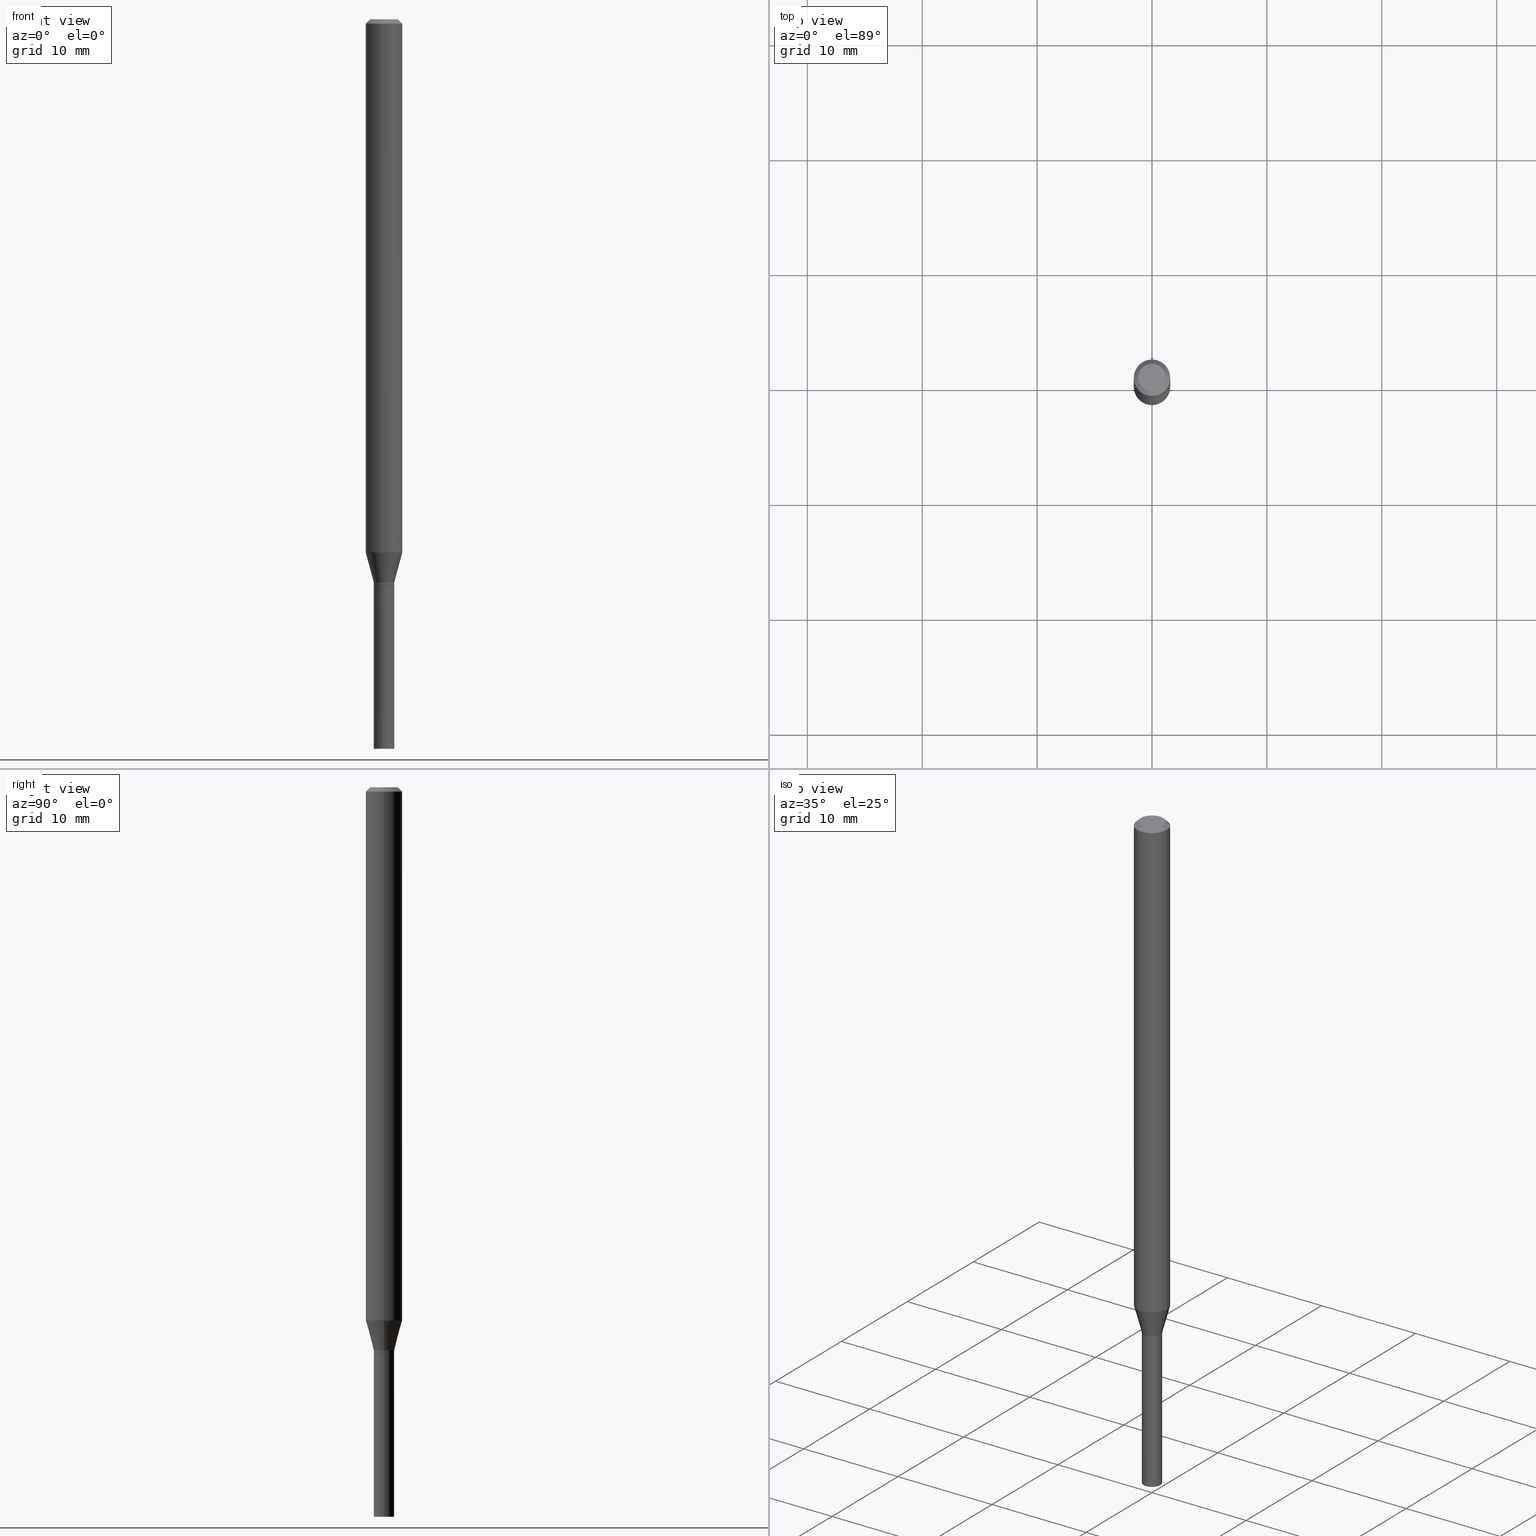
[diagram: canonical four-view strip — front | top / right | iso, engineering-drawing reading convention]
A machine part, canonical four-view strip (front | top / right | iso — engineering-drawing reading convention). The complete STEP part file that produces these views, byte-faithful:
ISO-10303-21;
HEADER;
FILE_DESCRIPTION (( 'STEP AP203' ),
    '1' );
FILE_NAME ('00626.STEP',
    '2024-03-19T22:08:39',
    ( '' ),
    ( '' ),
    'SwSTEP 2.0',
    'SolidWorks 2023',
    '' );
FILE_SCHEMA (( 'CONFIG_CONTROL_DESIGN' ));
ENDSEC;

DATA;
#1 = LINE ( 'NONE', #390, #259 ) ;
#2 = ORIENTED_EDGE ( 'NONE', *, *, #77, .F. ) ;
#3 = FACE_OUTER_BOUND ( 'NONE', #106, .T. ) ;
#4 = ADVANCED_FACE ( 'NONE', ( #133 ), #28, .T. ) ;
#5 = VECTOR ( 'NONE', #422, 39.37007874015748143 ) ;
#6 = DIRECTION ( 'NONE',  ( 1.000000000000000000, -6.982962677686264344E-15, 0.000000000000000000 ) ) ;
#7 = VERTEX_POINT ( 'NONE', #62 ) ;
#8 = DIRECTION ( 'NONE',  ( 0.7071067811865520136, -7.319954787623270245E-15, -0.7071067811865430208 ) ) ;
#9 = VERTEX_POINT ( 'NONE', #166 ) ;
#10 = DIRECTION ( 'NONE',  ( 1.000000000000000000, -6.982962677686266711E-15, 4.876176775795935793E-29 ) ) ;
#11 = VECTOR ( 'NONE', #318, 39.37007874015748143 ) ;
#12 = APPLICATION_CONTEXT ( 'configuration controlled 3d designs of mechanical parts and assemblies' ) ;
#13 = DIRECTION ( 'NONE',  ( 1.000000000000000000, 0.000000000000000000, 0.000000000000000000 ) ) ;
#14 = ORIENTED_EDGE ( 'NONE', *, *, #317, .T. ) ;
#15 = CARTESIAN_POINT ( 'NONE',  ( 0.000000000000000000, 0.000000000000000000, 0.000000000000000000 ) ) ;
#16 = ADVANCED_FACE ( 'NONE', ( #312 ), #89, .T. ) ;
#17 = APPROVAL_ROLE ( '' ) ;
#18 = PLANE ( 'NONE',  #82 ) ;
#19 = CONICAL_SURFACE ( 'NONE', #224, 0.03450000000000000289, 0.7853981633974739252 ) ;
#20 = DIRECTION ( 'NONE',  ( 1.000000000000000000, -6.982962677686265922E-15, 4.876176775795935793E-29 ) ) ;
#21 = AXIS2_PLACEMENT_3D ( 'NONE', #81, #239, #272 ) ;
#22 =( LENGTH_UNIT ( ) NAMED_UNIT ( * ) SI_UNIT ( $, .METRE. ) );
#23 = CARTESIAN_POINT ( 'NONE',  ( 3.668203209277705088E-31, -5.237222008264718399E-17, -0.01499999999999999944 ) ) ;
#24 = ADVANCED_FACE ( 'NONE', ( #242 ), #423, .T. ) ;
#25 = LINE ( 'NONE', #174, #65 ) ;
#26 = PERSON_AND_ORGANIZATION_ROLE ( 'creator' ) ;
#27 = CARTESIAN_POINT ( 'NONE',  ( -0.03450000000000000289, -6.525687326344358049E-15, -1.940000000000000169 ) ) ;
#28 = CONICAL_SURFACE ( 'NONE', #238, 0.06250000000000000000, 0.7853981633974547183 ) ;
#29 = AXIS2_PLACEMENT_3D ( 'NONE', #200, #122, #169 ) ;
#30 = CC_DESIGN_APPROVAL ( #202, ( #152 ) ) ;
#31 = ORIENTED_EDGE ( 'NONE', *, *, #457, .F. ) ;
#32 = CC_DESIGN_PERSON_AND_ORGANIZATION_ASSIGNMENT ( #378, #265, ( #425 ) ) ;
#33 = CIRCLE ( 'NONE', #359, 0.04749999999999999362 ) ;
#34 = DIRECTION ( 'NONE',  ( 1.000000000000000000, -6.982962677686266711E-15, 4.876176775795935793E-29 ) ) ;
#35 = EDGE_LOOP ( 'NONE', ( #249, #96 ) ) ;
#36 = EDGE_CURVE ( 'NONE', #289, #51, #352, .T. ) ;
#37 = DIRECTION ( 'NONE',  ( -2.445468806185136597E-29, 3.491481338843145583E-15, 1.000000000000000000 ) ) ;
#38 = CARTESIAN_POINT ( 'NONE',  ( 0.000000000000000000, 0.000000000000000000, 0.000000000000000000 ) ) ;
#39 = VERTEX_POINT ( 'NONE', #171 ) ;
#40 = FACE_OUTER_BOUND ( 'NONE', #44, .T. ) ;
#41 = AXIS2_PLACEMENT_3D ( 'NONE', #38, #360, #34 ) ;
#42 = DIRECTION ( 'NONE',  ( -2.445468806185136597E-29, 3.491481338843145583E-15, 1.000000000000000000 ) ) ;
#43 = LOCAL_TIME ( 18, 8, 39.00000000000000000, #298 ) ;
#44 = EDGE_LOOP ( 'NONE', ( #2, #287, #80, #397 ) ) ;
#45 = DIRECTION ( 'NONE',  ( -2.445468806185136597E-29, 3.491481338843145583E-15, 1.000000000000000000 ) ) ;
#46 = ORIENTED_EDGE ( 'NONE', *, *, #329, .F. ) ;
#47 = EDGE_CURVE ( 'NONE', #51, #268, #415, .T. ) ;
#48 = AXIS2_PLACEMENT_3D ( 'NONE', #449, #308, #127 ) ;
#49 = EDGE_LOOP ( 'NONE', ( #210, #118, #433, #264 ) ) ;
#50 = EDGE_CURVE ( 'NONE', #39, #9, #188, .T. ) ;
#51 = VERTEX_POINT ( 'NONE', #27 ) ;
#52 = PERSON_AND_ORGANIZATION ( #225, #75 ) ;
#53 = DIRECTION ( 'NONE',  ( -2.445468806185136597E-29, 3.491481338843145583E-15, 1.000000000000000000 ) ) ;
#54 = DIRECTION ( 'NONE',  ( 1.000000000000000000, -6.982962677686264344E-15, 0.000000000000000000 ) ) ;
#55 = CALENDAR_DATE ( 2024, 19, 3 ) ;
#56 = AXIS2_PLACEMENT_3D ( 'NONE', #400, #227, #373 ) ;
#57 = VERTEX_POINT ( 'NONE', #93 ) ;
#58 = DATE_AND_TIME ( #232, #109 ) ;
#59 = FACE_OUTER_BOUND ( 'NONE', #112, .T. ) ;
#60 = DIRECTION ( 'NONE',  ( -2.445468806185136597E-29, 3.491481338843145583E-15, 1.000000000000000000 ) ) ;
#61 = DIRECTION ( 'NONE',  ( -1.000000000000000000, 6.982962677686266711E-15, 0.000000000000000000 ) ) ;
#62 = CARTESIAN_POINT ( 'NONE',  ( -0.04749999999999999362, 3.578768372314207548E-16, -1.869615573468360244E-16 ) ) ;
#63 = EDGE_CURVE ( 'NONE', #268, #57, #211, .T. ) ;
#64 = VERTEX_POINT ( 'NONE', #208 ) ;
#65 = VECTOR ( 'NONE', #458, 39.37007874015748854 ) ;
#66 = ADVANCED_FACE ( 'NONE', ( #244 ), #325, .T. ) ;
#67 = AXIS2_PLACEMENT_3D ( 'NONE', #132, #273, #241 ) ;
#68 = CARTESIAN_POINT ( 'NONE',  ( -0.03499999999999992700, -6.523038099170247637E-15, -1.939500000000000224 ) ) ;
#69 = VERTEX_POINT ( 'NONE', #349 ) ;
#70 = DIRECTION ( 'NONE',  ( -2.445468806185136877E-29, 3.491481338843145188E-15, 1.000000000000000000 ) ) ;
#71 = DIRECTION ( 'NONE',  ( -2.445468806185136597E-29, 3.491481338843145583E-15, 1.000000000000000000 ) ) ;
#72 = EDGE_LOOP ( 'NONE', ( #235, #363, #316, #223 ) ) ;
#73 = APPLICATION_CONTEXT ( 'configuration controlled 3d designs of mechanical parts and assemblies' ) ;
#74 = AXIS2_PLACEMENT_3D ( 'NONE', #195, #230, #163 ) ;
#75 = ORGANIZATION ( 'UNSPECIFIED', 'UNSPECIFIED', '' ) ;
#76 = CARTESIAN_POINT ( 'NONE',  ( 4.572086564474752109E-45, -6.527727885575223091E-31, -1.869615573468336332E-16 ) ) ;
#77 = EDGE_CURVE ( 'NONE', #9, #399, #305, .T. ) ;
#78 = ORIENTED_EDGE ( 'NONE', *, *, #266, .T. ) ;
#79 = ORIENTED_EDGE ( 'NONE', *, *, #311, .T. ) ;
#80 = ORIENTED_EDGE ( 'NONE', *, *, #144, .T. ) ;
#81 = CARTESIAN_POINT ( 'NONE',  ( 4.468772915529601294E-29, -6.380223375835637547E-15, -1.827368602791856089 ) ) ;
#82 = AXIS2_PLACEMENT_3D ( 'NONE', #157, #439, #442 ) ;
#83 = VERTEX_POINT ( 'NONE', #279 ) ;
#84 = APPROVAL_ROLE ( '' ) ;
#85 = UNCERTAINTY_MEASURE_WITH_UNIT (LENGTH_MEASURE( 1.000000000000000082E-05 ), #296, 'distance_accuracy_value', 'NONE');
#86 = FACE_OUTER_BOUND ( 'NONE', #184, .T. ) ;
#87 = DIRECTION ( 'NONE',  ( 2.445468806185136597E-29, -3.491481338843145583E-15, -1.000000000000000000 ) ) ;
#88 = DATE_AND_TIME ( #407, #150 ) ;
#89 = CYLINDRICAL_SURFACE ( 'NONE', #116, 0.03499999999999992700 ) ;
#90 = APPROVAL_DATE_TIME ( #339, #290 ) ;
#91 = DIRECTION ( 'NONE',  ( -2.445468806185136877E-29, 3.491481338843145188E-15, 1.000000000000000000 ) ) ;
#92 = CIRCLE ( 'NONE', #326, 0.03500000000000000333 ) ;
#93 = CARTESIAN_POINT ( 'NONE',  ( 0.03499999999999992700, -7.016131750405300522E-15, -1.939500000000000224 ) ) ;
#94 = PRODUCT_RELATED_PRODUCT_CATEGORY ( 'detail', '', ( #371 ) ) ;
#95 = APPROVAL_DATE_TIME ( #343, #202 ) ;
#96 = ORIENTED_EDGE ( 'NONE', *, *, #158, .F. ) ;
#97 = LINE ( 'NONE', #245, #216 ) ;
#98 = EDGE_CURVE ( 'NONE', #69, #217, #25, .T. ) ;
#99 = CARTESIAN_POINT ( 'NONE',  ( 6.113672015462842613E-29, -8.728703347107864943E-15, -2.500000000000000000 ) ) ;
#100 = VECTOR ( 'NONE', #451, 39.37007874015748143 ) ;
#101 = AXIS2_PLACEMENT_3D ( 'NONE', #361, #185, #392 ) ;
#102 = DIMENSIONAL_EXPONENTS ( 1.000000000000000000, 0.000000000000000000, 0.000000000000000000, 0.000000000000000000, 0.000000000000000000, 0.000000000000000000, 0.000000000000000000 ) ;
#103 = EDGE_LOOP ( 'NONE', ( #463, #295, #151, #255 ) ) ;
#104 = CYLINDRICAL_SURFACE ( 'NONE', #41, 0.06250000000000000000 ) ;
#105 = ADVANCED_FACE ( 'NONE', ( #140 ), #277, .F. ) ;
#106 = EDGE_LOOP ( 'NONE', ( #153, #14 ) ) ;
#107 = CLOSED_SHELL ( 'NONE', ( #388, #243, #4, #402, #66, #427, #176, #24, #297, #105, #209, #16 ) ) ;
#108 = VECTOR ( 'NONE', #8, 39.37007874015748143 ) ;
#109 = LOCAL_TIME ( 18, 8, 39.00000000000000000, #412 ) ;
#110 = DIRECTION ( 'NONE',  ( 1.000000000000000000, -6.982962677686276966E-15, 0.000000000000000000 ) ) ;
#111 = EDGE_LOOP ( 'NONE', ( #328, #336, #319, #333 ) ) ;
#112 = EDGE_LOOP ( 'NONE', ( #438, #146, #46, #406 ) ) ;
#113 = CC_DESIGN_PERSON_AND_ORGANIZATION_ASSIGNMENT ( #198, #310, ( #447 ) ) ;
#114 = DIRECTION ( 'NONE',  ( -2.445468806185136597E-29, 3.491481338843145583E-15, 1.000000000000000000 ) ) ;
#115 = EDGE_LOOP ( 'NONE', ( #196, #426, #374, #395 ) ) ;
#116 = AXIS2_PLACEMENT_3D ( 'NONE', #380, #346, #355 ) ;
#117 = CARTESIAN_POINT ( 'NONE',  ( 0.06250000000000000000, -4.364351673553916694E-16, 3.047610484872459871E-30 ) ) ;
#118 = ORIENTED_EDGE ( 'NONE', *, *, #372, .T. ) ;
#119 = DIRECTION ( 'NONE',  ( -2.445468806185136597E-29, 3.491481338843145583E-15, 1.000000000000000000 ) ) ;
#120 = ORIENTED_EDGE ( 'NONE', *, *, #347, .T. ) ;
#121 = APPROVAL_STATUS ( 'not_yet_approved' ) ;
#122 = DIRECTION ( 'NONE',  ( -2.445468806185136597E-29, 3.491481338843145583E-15, 1.000000000000000000 ) ) ;
#123 = AXIS2_PLACEMENT_3D ( 'NONE', #342, #351, #54 ) ;
#124 = CIRCLE ( 'NONE', #29, 0.06250000000000000000 ) ;
#125 = EDGE_LOOP ( 'NONE', ( #79, #369 ) ) ;
#126 = SECURITY_CLASSIFICATION_LEVEL ( 'unclassified' ) ;
#127 = DIRECTION ( 'NONE',  ( 1.000000000000000000, -6.982962677686276966E-15, 0.000000000000000000 ) ) ;
#128 = DIRECTION ( 'NONE',  ( -0.7071067811865656694, 7.493145998870420424E-15, 0.7071067811865294761 ) ) ;
#129 = COORDINATED_UNIVERSAL_TIME_OFFSET ( 5, 0, .BEHIND. ) ;
#130 = APPLICATION_PROTOCOL_DEFINITION ( 'international standard', 'config_control_design', 1994, #73 ) ;
#131 = EDGE_CURVE ( 'NONE', #57, #64, #138, .T. ) ;
#132 = CARTESIAN_POINT ( 'NONE',  ( 0.000000000000000000, 0.000000000000000000, 0.000000000000000000 ) ) ;
#133 = FACE_OUTER_BOUND ( 'NONE', #226, .T. ) ;
#134 = CALENDAR_DATE ( 2024, 19, 3 ) ;
#135 = AXIS2_PLACEMENT_3D ( 'NONE', #364, #114, #110 ) ;
#136 = CARTESIAN_POINT ( 'NONE',  ( 4.744209483999165043E-29, -6.773473797355702848E-15, -1.940000000000000169 ) ) ;
#137 = DATE_AND_TIME ( #134, #354 ) ;
#138 = LINE ( 'NONE', #201, #5 ) ;
#139 = EDGE_CURVE ( 'NONE', #7, #270, #97, .T. ) ;
#140 = FACE_OUTER_BOUND ( 'NONE', #192, .T. ) ;
#141 = VERTEX_POINT ( 'NONE', #248 ) ;
#142 = DIRECTION ( 'NONE',  ( 1.000000000000000000, -6.982962677686276966E-15, 0.000000000000000000 ) ) ;
#143 = DIRECTION ( 'NONE',  ( -1.000000000000000000, 6.982962677686265922E-15, -4.876176775795935793E-29 ) ) ;
#144 = EDGE_CURVE ( 'NONE', #39, #83, #358, .T. ) ;
#145 = DIRECTION ( 'NONE',  ( -2.445468806185136597E-29, 3.491481338843145583E-15, 1.000000000000000000 ) ) ;
#146 = ORIENTED_EDGE ( 'NONE', *, *, #47, .T. ) ;
#147 = PLANE ( 'NONE',  #282 ) ;
#148 = VECTOR ( 'NONE', #128, 39.37007874015748143 ) ;
#149 = VECTOR ( 'NONE', #91, 39.37007874015748143 ) ;
#150 = LOCAL_TIME ( 18, 8, 39.00000000000000000, #306 ) ;
#151 = ORIENTED_EDGE ( 'NONE', *, *, #396, .F. ) ;
#152 = PRODUCT_DEFINITION ( 'UNKNOWN', '', #447, #167 ) ;
#153 = ORIENTED_EDGE ( 'NONE', *, *, #284, .T. ) ;
#154 = DIRECTION ( 'NONE',  ( -2.445468806185136597E-29, 3.491481338843145583E-15, 1.000000000000000000 ) ) ;
#155 = ORIENTED_EDGE ( 'NONE', *, *, #421, .T. ) ;
#156 = CIRCLE ( 'NONE', #417, 0.03499999999999992700 ) ;
#157 = CARTESIAN_POINT ( 'NONE',  ( 6.198122052593289668E-29, -8.607766087339451973E-15, -2.500000000000000000 ) ) ;
#158 = EDGE_CURVE ( 'NONE', #9, #39, #92, .T. ) ;
#159 = FACE_OUTER_BOUND ( 'NONE', #111, .T. ) ;
#160 = CALENDAR_DATE ( 2024, 19, 3 ) ;
#161 = CARTESIAN_POINT ( 'NONE',  ( 3.668203209277705088E-31, -5.237222008264718399E-17, -0.01499999999999999944 ) ) ;
#162 = PERSON_AND_ORGANIZATION ( #225, #75 ) ;
#163 = DIRECTION ( 'NONE',  ( 1.000000000000000000, -6.982962677686264344E-15, 0.000000000000000000 ) ) ;
#164 = VECTOR ( 'NONE', #70, 39.37007874015748143 ) ;
#165 = APPROVAL_PERSON_ORGANIZATION ( #313, #281, #84 ) ;
#166 = CARTESIAN_POINT ( 'NONE',  ( -0.03500000000000000333, -7.502398614715749004E-15, -2.500000000000000000 ) ) ;
#167 = DESIGN_CONTEXT ( 'detailed design', #12, 'design' ) ;
#168 = CC_DESIGN_DATE_AND_TIME_ASSIGNMENT ( #137, #375, ( #425 ) ) ;
#169 = DIRECTION ( 'NONE',  ( 1.000000000000000000, -6.982962677686266711E-15, 0.000000000000000000 ) ) ;
#170 = FACE_OUTER_BOUND ( 'NONE', #72, .T. ) ;
#171 = CARTESIAN_POINT ( 'NONE',  ( 0.03500000000000000333, -8.973107040826884909E-15, -2.500000000000000000 ) ) ;
#172 = PERSON_AND_ORGANIZATION ( #225, #75 ) ;
#173 = CARTESIAN_POINT ( 'NONE',  ( 4.744209483999165043E-29, -6.773473797355702848E-15, -1.940000000000000169 ) ) ;
#174 = CARTESIAN_POINT ( 'NONE',  ( -0.03499999999999992700, -6.489869026451236702E-15, -1.930000000000000160 ) ) ;
#175 = COORDINATED_UNIVERSAL_TIME_OFFSET ( 5, 0, .BEHIND. ) ;
#176 = ADVANCED_FACE ( 'NONE', ( #365 ), #104, .T. ) ;
#177 = VECTOR ( 'NONE', #219, 39.37007874015748143 ) ;
#178 = DIRECTION ( 'NONE',  ( 1.000000000000000000, -6.982962677686276966E-15, 0.000000000000000000 ) ) ;
#179 = APPROVAL_PERSON_ORGANIZATION ( #456, #202, #350 ) ;
#180 = CARTESIAN_POINT ( 'NONE',  ( 3.668203209277705088E-31, -5.237222008264718399E-17, -0.01499999999999999944 ) ) ;
#181 = DIRECTION ( 'NONE',  ( -0.7071067811865520136, 2.468850131082303998E-15, -0.7071067811865430208 ) ) ;
#182 = CC_DESIGN_PERSON_AND_ORGANIZATION_ASSIGNMENT ( #172, #348, ( #371 ) ) ;
#183 = CARTESIAN_POINT ( 'NONE',  ( -0.03499999999999992700, 2.486899575160345464E-16, -1.721627281589213254E-30 ) ) ;
#184 = EDGE_LOOP ( 'NONE', ( #292, #120, #338, #441 ) ) ;
#185 = DIRECTION ( 'NONE',  ( -2.445468806185136597E-29, 3.491481338843145583E-15, 1.000000000000000000 ) ) ;
#186 = CARTESIAN_POINT ( 'NONE',  ( 2.444036937190667553E-16, 0.03499999999999323097, -1.940000000000000169 ) ) ;
#187 = EDGE_CURVE ( 'NONE', #64, #141, #1, .T. ) ;
#188 = CIRCLE ( 'NONE', #275, 0.03500000000000000333 ) ;
#189 =( GEOMETRIC_REPRESENTATION_CONTEXT ( 3 ) GLOBAL_UNCERTAINTY_ASSIGNED_CONTEXT ( ( #85 ) ) GLOBAL_UNIT_ASSIGNED_CONTEXT ( ( #296, #337, #228 ) ) REPRESENTATION_CONTEXT ( 'NONE', 'WORKASPACE' ) );
#190 = DIRECTION ( 'NONE',  ( 1.000000000000000000, -6.982962677686267499E-15, 4.852736867747366768E-29 ) ) ;
#191 = LINE ( 'NONE', #117, #177 ) ;
#192 = EDGE_LOOP ( 'NONE', ( #300, #370 ) ) ;
#193 = DIRECTION ( 'NONE',  ( -2.445468806185136597E-29, 3.491481338843145583E-15, 1.000000000000000000 ) ) ;
#194 = AXIS2_PLACEMENT_3D ( 'NONE', #236, #53, #299 ) ;
#195 = CARTESIAN_POINT ( 'NONE',  ( 4.719754795937314618E-29, -6.738558983967271199E-15, -1.930000000000000160 ) ) ;
#196 = ORIENTED_EDGE ( 'NONE', *, *, #321, .F. ) ;
#197 = EDGE_LOOP ( 'NONE', ( #443, #446, #237, #357 ) ) ;
#198 = PERSON_AND_ORGANIZATION ( #225, #75 ) ;
#199 = DIRECTION ( 'NONE',  ( 2.438088387897960049E-29, -3.491481338843145188E-15, -1.000000000000000000 ) ) ;
#200 = CARTESIAN_POINT ( 'NONE',  ( 3.668203209277705088E-31, -5.237222008264718399E-17, -0.01499999999999999944 ) ) ;
#201 = CARTESIAN_POINT ( 'NONE',  ( 0.03499999999999992700, -2.444036937190188320E-16, 1.706661871528573954E-30 ) ) ;
#202 = APPROVAL ( #121, 'UNSPECIFIED' ) ;
#203 = DATE_TIME_ROLE ( 'creation_date' ) ;
#204 = LENGTH_MEASURE_WITH_UNIT ( LENGTH_MEASURE( 0.02539999999999999897 ), #22 );
#205 = LOCAL_TIME ( 18, 8, 39.00000000000000000, #129 ) ;
#206 = DIRECTION ( 'NONE',  ( 2.445468806185136597E-29, -3.491481338843145583E-15, -1.000000000000000000 ) ) ;
#207 = SHAPE_DEFINITION_REPRESENTATION ( #278, #307 ) ;
#208 = CARTESIAN_POINT ( 'NONE',  ( 0.03499999999999992700, -6.982962677686290376E-15, -1.930000000000000160 ) ) ;
#209 = ADVANCED_FACE ( 'NONE', ( #362 ), #302, .T. ) ;
#210 = ORIENTED_EDGE ( 'NONE', *, *, #47, .F. ) ;
#211 = CIRCLE ( 'NONE', #301, 0.03499999999999992700 ) ;
#212 = CIRCLE ( 'NONE', #48, 0.03500000000000000333 ) ;
#213 = DIRECTION ( 'NONE',  ( -2.445468806185136597E-29, 3.491481338843145583E-15, 1.000000000000000000 ) ) ;
#214 = DIRECTION ( 'NONE',  ( 0.2588190451025212391, 1.565188264969622362E-15, 0.9659258262890679791 ) ) ;
#215 = ADVANCED_FACE ( 'NONE', ( #394 ), #220, .F. ) ;
#216 = VECTOR ( 'NONE', #181, 39.37007874015748143 ) ;
#217 = VERTEX_POINT ( 'NONE', #304 ) ;
#218 = APPROVAL_PERSON_ORGANIZATION ( #162, #290, #17 ) ;
#219 = DIRECTION ( 'NONE',  ( -2.445468806185136877E-29, 3.491481338843145188E-15, 1.000000000000000000 ) ) ;
#220 = PLANE ( 'NONE',  #437 ) ;
#221 = EDGE_CURVE ( 'NONE', #289, #57, #450, .T. ) ;
#222 = ORIENTED_EDGE ( 'NONE', *, *, #139, .F. ) ;
#223 = ORIENTED_EDGE ( 'NONE', *, *, #144, .F. ) ;
#224 = AXIS2_PLACEMENT_3D ( 'NONE', #173, #119, #322 ) ;
#225 = PERSON ( 'UNSPECIFIED', 'UNSPECIFIED', 'UNSPECIFIED', ('UNSPECIFIED'), ('UNSPECIFIED'), ('UNSPECIFIED') ) ;
#226 = EDGE_LOOP ( 'NONE', ( #331, #377, #155, #222 ) ) ;
#227 = DIRECTION ( 'NONE',  ( -2.445468806185136597E-29, 3.491481338843145583E-15, 1.000000000000000000 ) ) ;
#228 =( NAMED_UNIT ( * ) SI_UNIT ( $, .STERADIAN. ) SOLID_ANGLE_UNIT ( ) );
#229 = CIRCLE ( 'NONE', #424, 0.03499999999999992700 ) ;
#230 = DIRECTION ( 'NONE',  ( -2.445468806185136597E-29, 3.491481338843145583E-15, 1.000000000000000000 ) ) ;
#231 = VERTEX_POINT ( 'NONE', #385 ) ;
#232 = CALENDAR_DATE ( 2024, 19, 3 ) ;
#233 = LINE ( 'NONE', #379, #149 ) ;
#234 = ADVANCED_FACE ( 'NONE', ( #170 ), #454, .T. ) ;
#235 = ORIENTED_EDGE ( 'NONE', *, *, #50, .T. ) ;
#236 = CARTESIAN_POINT ( 'NONE',  ( 4.468772915529601294E-29, -6.380223375835637547E-15, -1.827368602791856089 ) ) ;
#237 = ORIENTED_EDGE ( 'NONE', *, *, #131, .T. ) ;
#238 = AXIS2_PLACEMENT_3D ( 'NONE', #180, #206, #61 ) ;
#239 = DIRECTION ( 'NONE',  ( -2.445468806185136597E-29, 3.491481338843145583E-15, 1.000000000000000000 ) ) ;
#240 = CIRCLE ( 'NONE', #135, 0.03500000000000000333 ) ;
#241 = DIRECTION ( 'NONE',  ( 1.000000000000000000, -6.982962677686265922E-15, 4.876176775795936353E-29 ) ) ;
#242 = FACE_OUTER_BOUND ( 'NONE', #115, .T. ) ;
#243 = ADVANCED_FACE ( 'NONE', ( #59 ), #19, .T. ) ;
#244 = FACE_OUTER_BOUND ( 'NONE', #103, .T. ) ;
#245 = CARTESIAN_POINT ( 'NONE',  ( -0.06250000000000000000, 3.840629472727444916E-16, -0.01499999999999999944 ) ) ;
#246 = AXIS2_PLACEMENT_3D ( 'NONE', #15, #335, #13 ) ;
#247 = ADVANCED_FACE ( 'NONE', ( #40 ), #288, .T. ) ;
#248 = CARTESIAN_POINT ( 'NONE',  ( 0.06250000000000000000, -6.816658543191029216E-15, -1.827368602791856089 ) ) ;
#249 = ORIENTED_EDGE ( 'NONE', *, *, #50, .F. ) ;
#250 = LINE ( 'NONE', #330, #108 ) ;
#251 = DIRECTION ( 'NONE',  ( 1.000000000000000000, -6.982962677686261977E-15, 0.000000000000000000 ) ) ;
#252 = AXIS2_PLACEMENT_3D ( 'NONE', #161, #303, #376 ) ;
#253 = EDGE_CURVE ( 'NONE', #268, #69, #283, .T. ) ;
#254 = CARTESIAN_POINT ( 'NONE',  ( 4.719754795937314618E-29, -6.738558983967271199E-15, -1.930000000000000160 ) ) ;
#255 = ORIENTED_EDGE ( 'NONE', *, *, #187, .F. ) ;
#256 = CARTESIAN_POINT ( 'NONE',  ( 0.04749999999999999362, -4.035134999187581581E-16, -1.869615573468310694E-16 ) ) ;
#257 = ORIENTED_EDGE ( 'NONE', *, *, #440, .F. ) ;
#258 = DIRECTION ( 'NONE',  ( 1.000000000000000000, -6.982962677686264344E-15, 0.000000000000000000 ) ) ;
#259 = VECTOR ( 'NONE', #214, 39.37007874015748854 ) ;
#260 = DIRECTION ( 'NONE',  ( 1.000000000000000000, -6.982962677686264344E-15, 0.000000000000000000 ) ) ;
#261 = EDGE_CURVE ( 'NONE', #64, #69, #430, .T. ) ;
#262 = EDGE_LOOP ( 'NONE', ( #404, #309, #419, #409 ) ) ;
#263 = VERTEX_POINT ( 'NONE', #256 ) ;
#264 = ORIENTED_EDGE ( 'NONE', *, *, #63, .F. ) ;
#265 = PERSON_AND_ORGANIZATION_ROLE ( 'classification_officer' ) ;
#266 = EDGE_CURVE ( 'NONE', #141, #231, #191, .T. ) ;
#267 = DIRECTION ( 'NONE',  ( -2.445468806185136597E-29, 3.491481338843145583E-15, 1.000000000000000000 ) ) ;
#268 = VERTEX_POINT ( 'NONE', #68 ) ;
#269 = PERSON_AND_ORGANIZATION_ROLE ( 'creator' ) ;
#270 = VERTEX_POINT ( 'NONE', #366 ) ;
#271 = PERSON_AND_ORGANIZATION ( #225, #75 ) ;
#272 = DIRECTION ( 'NONE',  ( 1.000000000000000000, -6.982962677686262766E-15, 0.000000000000000000 ) ) ;
#273 = DIRECTION ( 'NONE',  ( -2.445468806185136597E-29, 3.491481338843145583E-15, 1.000000000000000000 ) ) ;
#274 = CARTESIAN_POINT ( 'NONE',  ( 6.113672015462842613E-29, -8.728703347107864943E-15, -2.500000000000000000 ) ) ;
#275 = AXIS2_PLACEMENT_3D ( 'NONE', #274, #386, #178 ) ;
#276 = AXIS2_PLACEMENT_3D ( 'NONE', #356, #145, #251 ) ;
#277 = PLANE ( 'NONE',  #293 ) ;
#278 = PRODUCT_DEFINITION_SHAPE ( 'NONE', 'NONE',  #152 ) ;
#279 = CARTESIAN_POINT ( 'NONE',  ( 0.03500000000000000333, -7.017877491074722814E-15, -1.940000000000000169 ) ) ;
#280 = CARTESIAN_POINT ( 'NONE',  ( 4.744209483999165043E-29, -6.773473797355702848E-15, -1.940000000000000169 ) ) ;
#281 = APPROVAL ( #452, 'UNSPECIFIED' ) ;
#282 = AXIS2_PLACEMENT_3D ( 'NONE', #434, #431, #143 ) ;
#283 = LINE ( 'NONE', #183, #164 ) ;
#284 = EDGE_CURVE ( 'NONE', #7, #263, #384, .T. ) ;
#285 = CARTESIAN_POINT ( 'NONE',  ( 0.03450000000000000289, -7.014386009735879018E-15, -1.940000000000000169 ) ) ;
#286 = CC_DESIGN_APPROVAL ( #281, ( #447 ) ) ;
#287 = ORIENTED_EDGE ( 'NONE', *, *, #158, .T. ) ;
#288 = CYLINDRICAL_SURFACE ( 'NONE', #101, 0.03500000000000000333 ) ;
#289 = VERTEX_POINT ( 'NONE', #285 ) ;
#290 = APPROVAL ( #459, 'UNSPECIFIED' ) ;
#291 = DIRECTION ( 'NONE',  ( 1.000000000000000000, -6.982962677686267499E-15, 4.852736867747366768E-29 ) ) ;
#292 = ORIENTED_EDGE ( 'NONE', *, *, #98, .F. ) ;
#293 = AXIS2_PLACEMENT_3D ( 'NONE', #280, #461, #20 ) ;
#294 = CYLINDRICAL_SURFACE ( 'NONE', #344, 0.03499999999999992700 ) ;
#295 = ORIENTED_EDGE ( 'NONE', *, *, #98, .T. ) ;
#296 =( CONVERSION_BASED_UNIT ( 'INCH', #204 ) LENGTH_UNIT ( ) NAMED_UNIT ( #102 ) );
#297 = ADVANCED_FACE ( 'NONE', ( #3 ), #147, .F. ) ;
#298 = COORDINATED_UNIVERSAL_TIME_OFFSET ( 5, 0, .BEHIND. ) ;
#299 = DIRECTION ( 'NONE',  ( 1.000000000000000000, -6.982962677686262766E-15, 0.000000000000000000 ) ) ;
#300 = ORIENTED_EDGE ( 'NONE', *, *, #36, .F. ) ;
#301 = AXIS2_PLACEMENT_3D ( 'NONE', #389, #60, #387 ) ;
#302 = CONICAL_SURFACE ( 'NONE', #276, 0.03450000000000000289, 0.7853981633974739252 ) ;
#303 = DIRECTION ( 'NONE',  ( -2.445468806185136597E-29, 3.491481338843145583E-15, 1.000000000000000000 ) ) ;
#304 = CARTESIAN_POINT ( 'NONE',  ( -0.06250000000000000000, -5.936134165985575719E-15, -1.827368602791856089 ) ) ;
#305 = LINE ( 'NONE', #315, #100 ) ;
#306 = COORDINATED_UNIVERSAL_TIME_OFFSET ( 5, 0, .BEHIND. ) ;
#307 = ADVANCED_BREP_SHAPE_REPRESENTATION ( '00626', ( #435, #436, #246 ), #189 ) ;
#308 = DIRECTION ( 'NONE',  ( -2.445468806185136597E-29, 3.491481338843145583E-15, 1.000000000000000000 ) ) ;
#309 = ORIENTED_EDGE ( 'NONE', *, *, #253, .T. ) ;
#310 = PERSON_AND_ORGANIZATION_ROLE ( 'design_supplier' ) ;
#311 = EDGE_CURVE ( 'NONE', #83, #399, #240, .T. ) ;
#312 = FACE_OUTER_BOUND ( 'NONE', #197, .T. ) ;
#313 = PERSON_AND_ORGANIZATION ( #225, #75 ) ;
#314 = VECTOR ( 'NONE', #345, 39.37007874015748143 ) ;
#315 = CARTESIAN_POINT ( 'NONE',  ( -0.03500000000000000333, 2.486899575160350887E-16, -1.721627281589217108E-30 ) ) ;
#316 = ORIENTED_EDGE ( 'NONE', *, *, #311, .F. ) ;
#317 = EDGE_CURVE ( 'NONE', #263, #7, #33, .T. ) ;
#318 = DIRECTION ( 'NONE',  ( -2.445468806185136877E-29, 3.491481338843145188E-15, 1.000000000000000000 ) ) ;
#319 = ORIENTED_EDGE ( 'NONE', *, *, #421, .F. ) ;
#320 = CIRCLE ( 'NONE', #21, 0.06250000000000000000 ) ;
#321 = EDGE_CURVE ( 'NONE', #263, #231, #250, .T. ) ;
#322 = DIRECTION ( 'NONE',  ( 1.000000000000000000, -6.982962677686261977E-15, 0.000000000000000000 ) ) ;
#323 = CARTESIAN_POINT ( 'NONE',  ( 4.572086564474752109E-45, -6.527727885575223091E-31, -1.869615573468336332E-16 ) ) ;
#324 = DIRECTION ( 'NONE',  ( -2.445468806185136597E-29, 3.491481338843145583E-15, 1.000000000000000000 ) ) ;
#325 = CONICAL_SURFACE ( 'NONE', #123, 0.03499999999999992700, 0.2617993877991499629 ) ;
#326 = AXIS2_PLACEMENT_3D ( 'NONE', #99, #71, #142 ) ;
#327 = CARTESIAN_POINT ( 'NONE',  ( 4.719754795937314618E-29, -6.738558983967271199E-15, -1.930000000000000160 ) ) ;
#328 = ORIENTED_EDGE ( 'NONE', *, *, #396, .T. ) ;
#329 = EDGE_CURVE ( 'NONE', #57, #268, #156, .T. ) ;
#330 = CARTESIAN_POINT ( 'NONE',  ( 0.06250000000000000000, -4.811533449433679005E-16, -0.01499999999999999944 ) ) ;
#331 = ORIENTED_EDGE ( 'NONE', *, *, #317, .F. ) ;
#332 = CARTESIAN_POINT ( 'NONE',  ( -0.03500000000000000333, -7.502398614715749004E-15, -1.940000000000000169 ) ) ;
#333 = ORIENTED_EDGE ( 'NONE', *, *, #266, .F. ) ;
#334 = AXIS2_PLACEMENT_3D ( 'NONE', #323, #42, #190 ) ;
#335 = DIRECTION ( 'NONE',  ( 0.000000000000000000, 0.000000000000000000, 1.000000000000000000 ) ) ;
#336 = ORIENTED_EDGE ( 'NONE', *, *, #440, .T. ) ;
#337 =( NAMED_UNIT ( * ) PLANE_ANGLE_UNIT ( ) SI_UNIT ( $, .RADIAN. ) );
#338 = ORIENTED_EDGE ( 'NONE', *, *, #187, .T. ) ;
#339 = DATE_AND_TIME ( #55, #43 ) ;
#340 = DIRECTION ( 'NONE',  ( -1.000000000000000000, 6.982962677686265922E-15, -4.876176775795935793E-29 ) ) ;
#341 = CARTESIAN_POINT ( 'NONE',  ( 0.000000000000000000, 0.000000000000000000, 0.000000000000000000 ) ) ;
#342 = CARTESIAN_POINT ( 'NONE',  ( 4.719754795937314618E-29, -6.738558983967271199E-15, -1.930000000000000160 ) ) ;
#343 = DATE_AND_TIME ( #160, #205 ) ;
#344 = AXIS2_PLACEMENT_3D ( 'NONE', #341, #193, #10 ) ;
#345 = DIRECTION ( 'NONE',  ( 0.7071067811865656694, -2.468850131082446387E-15, 0.7071067811865294761 ) ) ;
#346 = DIRECTION ( 'NONE',  ( -2.445468806185136597E-29, 3.491481338843145583E-15, 1.000000000000000000 ) ) ;
#347 = EDGE_CURVE ( 'NONE', #69, #64, #229, .T. ) ;
#348 = PERSON_AND_ORGANIZATION_ROLE ( 'design_owner' ) ;
#349 = CARTESIAN_POINT ( 'NONE',  ( -0.03499999999999992700, -6.213001596218405422E-15, -1.930000000000000160 ) ) ;
#350 = APPROVAL_ROLE ( '' ) ;
#351 = DIRECTION ( 'NONE',  ( -2.445468806185136597E-29, 3.491481338843145583E-15, 1.000000000000000000 ) ) ;
#352 = CIRCLE ( 'NONE', #416, 0.03450000000000000289 ) ;
#353 = CONICAL_SURFACE ( 'NONE', #74, 0.03499999999999992700, 0.2617993877991499629 ) ;
#354 = LOCAL_TIME ( 18, 8, 39.00000000000000000, #175 ) ;
#355 = DIRECTION ( 'NONE',  ( 1.000000000000000000, -6.982962677686266711E-15, 4.876176775795935793E-29 ) ) ;
#356 = CARTESIAN_POINT ( 'NONE',  ( 4.744209483999165043E-29, -6.773473797355702848E-15, -1.940000000000000169 ) ) ;
#357 = ORIENTED_EDGE ( 'NONE', *, *, #347, .F. ) ;
#358 = LINE ( 'NONE', #466, #11 ) ;
#359 = AXIS2_PLACEMENT_3D ( 'NONE', #76, #45, #291 ) ;
#360 = DIRECTION ( 'NONE',  ( -2.445468806185136597E-29, 3.491481338843145583E-15, 1.000000000000000000 ) ) ;
#361 = CARTESIAN_POINT ( 'NONE',  ( 0.000000000000000000, 0.000000000000000000, 0.000000000000000000 ) ) ;
#362 = FACE_OUTER_BOUND ( 'NONE', #49, .T. ) ;
#363 = ORIENTED_EDGE ( 'NONE', *, *, #77, .T. ) ;
#364 = CARTESIAN_POINT ( 'NONE',  ( 4.744209483999165043E-29, -6.773473797355702848E-15, -1.940000000000000169 ) ) ;
#365 = FACE_OUTER_BOUND ( 'NONE', #401, .T. ) ;
#366 = CARTESIAN_POINT ( 'NONE',  ( -0.06250000000000000000, -2.772208588109079894E-15, -0.01499999999999999944 ) ) ;
#367 = CC_DESIGN_PERSON_AND_ORGANIZATION_ASSIGNMENT ( #271, #269, ( #447 ) ) ;
#368 = AXIS2_PLACEMENT_3D ( 'NONE', #327, #37, #258 ) ;
#369 = ORIENTED_EDGE ( 'NONE', *, *, #465, .T. ) ;
#370 = ORIENTED_EDGE ( 'NONE', *, *, #372, .F. ) ;
#371 = PRODUCT ( '00626', '00626', '', ( #413 ) ) ;
#372 = EDGE_CURVE ( 'NONE', #51, #289, #391, .T. ) ;
#373 = DIRECTION ( 'NONE',  ( 1.000000000000000000, -6.982962677686261977E-15, 0.000000000000000000 ) ) ;
#374 = ORIENTED_EDGE ( 'NONE', *, *, #139, .T. ) ;
#375 = DATE_TIME_ROLE ( 'classification_date' ) ;
#376 = DIRECTION ( 'NONE',  ( 1.000000000000000000, -6.982962677686266711E-15, 0.000000000000000000 ) ) ;
#377 = ORIENTED_EDGE ( 'NONE', *, *, #321, .T. ) ;
#378 = PERSON_AND_ORGANIZATION ( #225, #75 ) ;
#379 = CARTESIAN_POINT ( 'NONE',  ( -0.06250000000000000000, 4.440892098500626162E-16, -3.074334431409316114E-30 ) ) ;
#380 = CARTESIAN_POINT ( 'NONE',  ( 0.000000000000000000, 0.000000000000000000, 0.000000000000000000 ) ) ;
#381 = CARTESIAN_POINT ( 'NONE',  ( 0.000000000000000000, 0.000000000000000000, 0.000000000000000000 ) ) ;
#382 = ORIENTED_EDGE ( 'NONE', *, *, #432, .T. ) ;
#383 = CC_DESIGN_PERSON_AND_ORGANIZATION_ASSIGNMENT ( #52, #26, ( #152 ) ) ;
#384 = CIRCLE ( 'NONE', #334, 0.04749999999999999362 ) ;
#385 = CARTESIAN_POINT ( 'NONE',  ( 0.06250000000000000000, -4.888073874380388472E-16, -0.01499999999999999944 ) ) ;
#386 = DIRECTION ( 'NONE',  ( -2.445468806185136597E-29, 3.491481338843145583E-15, 1.000000000000000000 ) ) ;
#387 = DIRECTION ( 'NONE',  ( 1.000000000000000000, -6.982962677686264344E-15, 0.000000000000000000 ) ) ;
#388 = ADVANCED_FACE ( 'NONE', ( #453 ), #294, .T. ) ;
#389 = CARTESIAN_POINT ( 'NONE',  ( 4.742986749596072802E-29, -6.771728056686281345E-15, -1.939500000000000224 ) ) ;
#390 = CARTESIAN_POINT ( 'NONE',  ( 0.03499999999999992700, -6.982962677686290376E-15, -1.930000000000000160 ) ) ;
#391 = CIRCLE ( 'NONE', #56, 0.03450000000000000289 ) ;
#392 = DIRECTION ( 'NONE',  ( 1.000000000000000000, -6.982962677686265922E-15, 4.876176775795936353E-29 ) ) ;
#393 = CC_DESIGN_APPROVAL ( #290, ( #425 ) ) ;
#394 = FACE_OUTER_BOUND ( 'NONE', #125, .T. ) ;
#395 = ORIENTED_EDGE ( 'NONE', *, *, #457, .T. ) ;
#396 = EDGE_CURVE ( 'NONE', #141, #217, #398, .T. ) ;
#397 = ORIENTED_EDGE ( 'NONE', *, *, #465, .F. ) ;
#398 = CIRCLE ( 'NONE', #194, 0.06250000000000000000 ) ;
#399 = VERTEX_POINT ( 'NONE', #332 ) ;
#400 = CARTESIAN_POINT ( 'NONE',  ( 4.744209483999165043E-29, -6.773473797355702848E-15, -1.940000000000000169 ) ) ;
#401 = EDGE_LOOP ( 'NONE', ( #257, #382, #78, #31 ) ) ;
#402 = ADVANCED_FACE ( 'NONE', ( #159 ), #445, .T. ) ;
#403 = FACE_OUTER_BOUND ( 'NONE', #35, .T. ) ;
#404 = ORIENTED_EDGE ( 'NONE', *, *, #329, .T. ) ;
#405 = AXIS2_PLACEMENT_3D ( 'NONE', #23, #87, #462 ) ;
#406 = ORIENTED_EDGE ( 'NONE', *, *, #221, .F. ) ;
#407 = CALENDAR_DATE ( 2024, 19, 3 ) ;
#408 = DIRECTION ( 'NONE',  ( 1.000000000000000000, -6.982962677686266711E-15, 4.876176775795935793E-29 ) ) ;
#409 = ORIENTED_EDGE ( 'NONE', *, *, #131, .F. ) ;
#410 = ADVANCED_FACE ( 'NONE', ( #403 ), #18, .F. ) ;
#411 = DIRECTION ( 'NONE',  ( 1.000000000000000000, -6.982962677686261977E-15, 0.000000000000000000 ) ) ;
#412 = COORDINATED_UNIVERSAL_TIME_OFFSET ( 5, 0, .BEHIND. ) ;
#413 = MECHANICAL_CONTEXT ( 'NONE', #73, 'mechanical' ) ;
#414 = CARTESIAN_POINT ( 'NONE',  ( 0.03450000000000000289, -7.014386009735879018E-15, -1.940000000000000169 ) ) ;
#415 = LINE ( 'NONE', #455, #148 ) ;
#416 = AXIS2_PLACEMENT_3D ( 'NONE', #136, #213, #411 ) ;
#417 = AXIS2_PLACEMENT_3D ( 'NONE', #428, #324, #6 ) ;
#418 = CC_DESIGN_SECURITY_CLASSIFICATION ( #425, ( #447 ) ) ;
#419 = ORIENTED_EDGE ( 'NONE', *, *, #261, .F. ) ;
#420 = APPROVAL_DATE_TIME ( #58, #281 ) ;
#421 = EDGE_CURVE ( 'NONE', #231, #270, #124, .T. ) ;
#422 = DIRECTION ( 'NONE',  ( -2.445468806185136877E-29, 3.491481338843145188E-15, 1.000000000000000000 ) ) ;
#423 = CONICAL_SURFACE ( 'NONE', #405, 0.06250000000000000000, 0.7853981633974547183 ) ;
#424 = AXIS2_PLACEMENT_3D ( 'NONE', #254, #154, #260 ) ;
#425 = SECURITY_CLASSIFICATION ( '', '', #126 ) ;
#426 = ORIENTED_EDGE ( 'NONE', *, *, #284, .F. ) ;
#427 = ADVANCED_FACE ( 'NONE', ( #86 ), #353, .T. ) ;
#428 = CARTESIAN_POINT ( 'NONE',  ( 4.742986749596072802E-29, -6.771728056686281345E-15, -1.939500000000000224 ) ) ;
#429 = CLOSED_SHELL ( 'NONE', ( #234, #410, #247, #215 ) ) ;
#430 = CIRCLE ( 'NONE', #368, 0.03499999999999992700 ) ;
#431 = DIRECTION ( 'NONE',  ( 2.438088387897960049E-29, -3.491481338843145188E-15, -1.000000000000000000 ) ) ;
#432 = EDGE_CURVE ( 'NONE', #217, #141, #320, .T. ) ;
#433 = ORIENTED_EDGE ( 'NONE', *, *, #221, .T. ) ;
#434 = CARTESIAN_POINT ( 'NONE',  ( 3.316907271900976096E-16, 0.04749999999999999362, -2.593261422684662377E-16 ) ) ;
#435 = MANIFOLD_SOLID_BREP ( 'Body-Move/Copy2[1]', #429 ) ;
#436 = MANIFOLD_SOLID_BREP ( 'Body-Move/Copy2[2]', #107 ) ;
#437 = AXIS2_PLACEMENT_3D ( 'NONE', #186, #199, #340 ) ;
#438 = ORIENTED_EDGE ( 'NONE', *, *, #36, .T. ) ;
#439 = DIRECTION ( 'NONE',  ( -2.438088387897960049E-29, 3.491481338843145188E-15, 1.000000000000000000 ) ) ;
#440 = EDGE_CURVE ( 'NONE', #217, #270, #233, .T. ) ;
#441 = ORIENTED_EDGE ( 'NONE', *, *, #432, .F. ) ;
#442 = DIRECTION ( 'NONE',  ( 1.000000000000000000, -6.982962677686265922E-15, 4.876176775795935793E-29 ) ) ;
#443 = ORIENTED_EDGE ( 'NONE', *, *, #253, .F. ) ;
#444 = APPLICATION_PROTOCOL_DEFINITION ( 'international standard', 'config_control_design', 1994, #12 ) ;
#445 = CYLINDRICAL_SURFACE ( 'NONE', #460, 0.06250000000000000000 ) ;
#446 = ORIENTED_EDGE ( 'NONE', *, *, #63, .T. ) ;
#447 = PRODUCT_DEFINITION_FORMATION_WITH_SPECIFIED_SOURCE ( 'ANY', '', #371, .NOT_KNOWN. ) ;
#448 = CC_DESIGN_DATE_AND_TIME_ASSIGNMENT ( #88, #203, ( #152 ) ) ;
#449 = CARTESIAN_POINT ( 'NONE',  ( 4.744209483999165043E-29, -6.773473797355702848E-15, -1.940000000000000169 ) ) ;
#450 = LINE ( 'NONE', #414, #314 ) ;
#451 = DIRECTION ( 'NONE',  ( -2.445468806185136877E-29, 3.491481338843145188E-15, 1.000000000000000000 ) ) ;
#452 = APPROVAL_STATUS ( 'not_yet_approved' ) ;
#453 = FACE_OUTER_BOUND ( 'NONE', #262, .T. ) ;
#454 = CYLINDRICAL_SURFACE ( 'NONE', #67, 0.03500000000000000333 ) ;
#455 = CARTESIAN_POINT ( 'NONE',  ( -0.03450000000000000289, -6.528336553518468461E-15, -1.940000000000000169 ) ) ;
#456 = PERSON_AND_ORGANIZATION ( #225, #75 ) ;
#457 = EDGE_CURVE ( 'NONE', #270, #231, #464, .T. ) ;
#458 = DIRECTION ( 'NONE',  ( -0.2588190451025212391, 5.211531920934549464E-15, 0.9659258262890679791 ) ) ;
#459 = APPROVAL_STATUS ( 'not_yet_approved' ) ;
#460 = AXIS2_PLACEMENT_3D ( 'NONE', #381, #267, #408 ) ;
#461 = DIRECTION ( 'NONE',  ( -2.438088387897960049E-29, 3.491481338843145188E-15, 1.000000000000000000 ) ) ;
#462 = DIRECTION ( 'NONE',  ( -1.000000000000000000, 6.982962677686266711E-15, 0.000000000000000000 ) ) ;
#463 = ORIENTED_EDGE ( 'NONE', *, *, #261, .T. ) ;
#464 = CIRCLE ( 'NONE', #252, 0.06250000000000000000 ) ;
#465 = EDGE_CURVE ( 'NONE', #399, #83, #212, .T. ) ;
#466 = CARTESIAN_POINT ( 'NONE',  ( 0.03500000000000000333, -2.444036937190193250E-16, 1.706661871528577808E-30 ) ) ;
ENDSEC;
END-ISO-10303-21;
